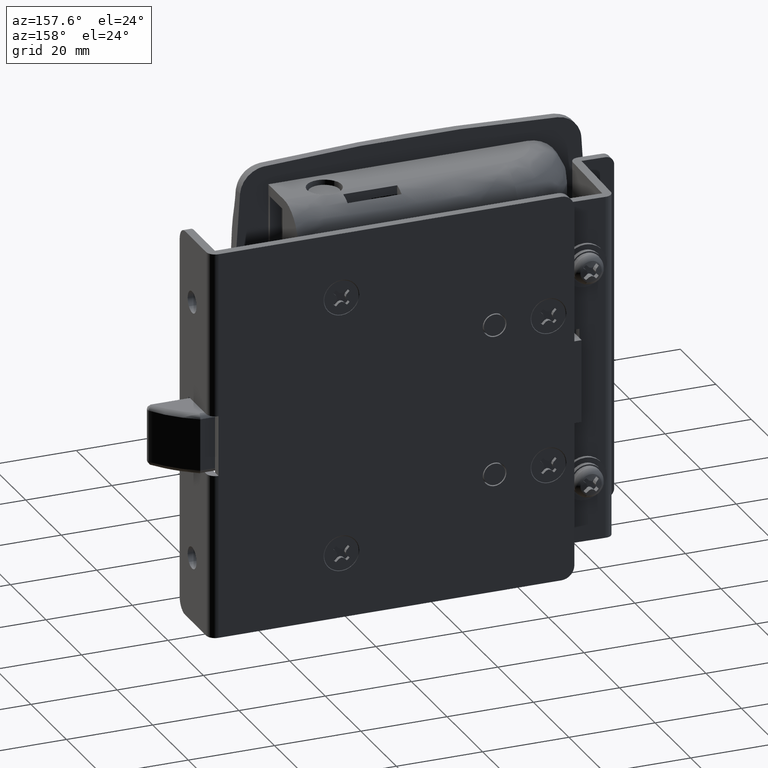
[diagram: clean part render]
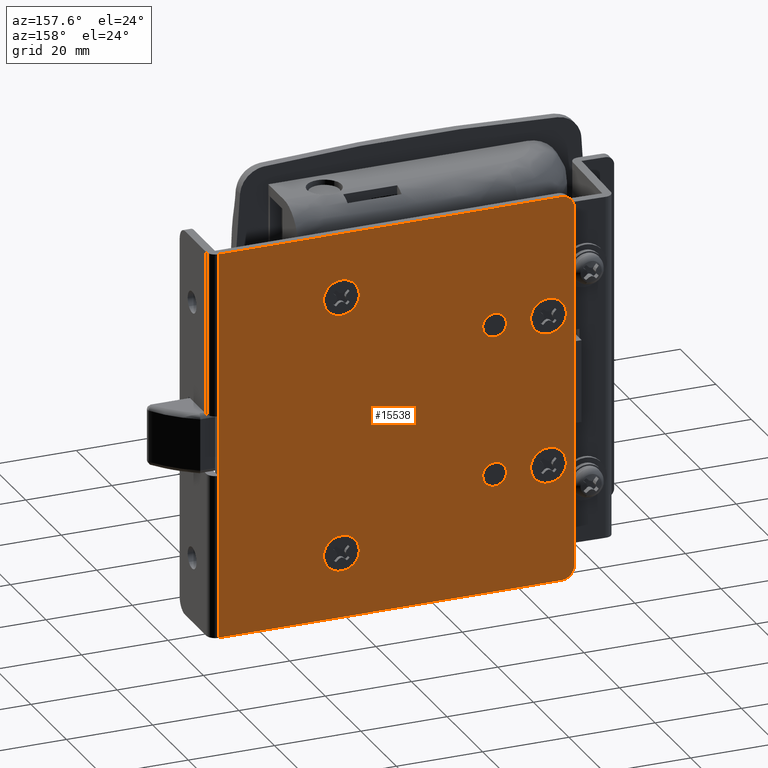
[diagram: same view with one face highlighted and labeled with its STEP entity id]
A machine part, auxiliary view. The second image highlights one B-rep face of the part: STEP entity #15538.
In plain terms, the highlighted face is a freeform B-spline surface patch.
Its self-contained STEP definition (entity closure, byte-faithful):
#8909=CARTESIAN_POINT('',(-5.472486764820257,-4.510281E-017,-19.357573758548568));
#8910=VERTEX_POINT('',#8909);
#8916=CARTESIAN_POINT('',(-7.499999999999770,0.0,-20.249700000000001));
#8917=VERTEX_POINT('',#8916);
#8918=CARTESIAN_POINT('',(-5.472486764820257,-4.510281E-017,-19.357573758548568));
#8919=CARTESIAN_POINT('',(-5.632884889595477,-4.153469E-017,-19.532712675213219));
#8920=CARTESIAN_POINT('',(-5.962786812446860,-3.419590E-017,-19.810153431054999));
#8921=CARTESIAN_POINT('',(-6.645240300444558,-1.901446E-017,-20.153727850207289));
#8922=CARTESIAN_POINT('',(-7.167472944522998,-7.397192E-018,-20.249994404481001));
#8923=CARTESIAN_POINT('',(-7.499999999999770,0.0,-20.249700000000001));
#8924=B_SPLINE_CURVE_WITH_KNOTS('',3,(#8918,#8919,#8920,#8921,#8922,#8923),.UNSPECIFIED.,.F.,.U.,(4,1,1,4),(0.000000021757306,0.712471145882146,1.282443304209059,2.279900310579054),.UNSPECIFIED.);
#8925=EDGE_CURVE('',#8910,#8917,#8924,.T.);
#8927=CARTESIAN_POINT('',(-10.249999999997520,0.0,-17.499696480036189));
#8928=VERTEX_POINT('',#8927);
#8929=CARTESIAN_POINT('',(-7.499999999999770,0.0,-20.249700000000001));
#8930=CARTESIAN_POINT('',(-7.837533458423358,0.0,-20.250032966791679));
#8931=CARTESIAN_POINT('',(-8.354739198675501,0.0,-20.153149346765431));
#8932=CARTESIAN_POINT('',(-9.061541571091166,0.0,-19.797423171544150));
#8933=CARTESIAN_POINT('',(-9.578205878396686,0.0,-19.351810811415952));
#8934=CARTESIAN_POINT('',(-9.955935345113534,0.0,-18.786296907043699));
#8935=CARTESIAN_POINT('',(-10.191889706605750,0.0,-18.174612791913610));
#8936=CARTESIAN_POINT('',(-10.250083225690529,0.0,-17.747185682857449));
#8937=CARTESIAN_POINT('',(-10.249999999997520,0.0,-17.499696480036189));
#8938=B_SPLINE_CURVE_WITH_KNOTS('',3,(#8929,#8930,#8931,#8932,#8933,#8934,#8935,#8936,#8937),.UNSPECIFIED.,.F.,.U.,(4,1,1,1,1,1,4),(0.000000108881161,1.012449949449890,1.552443345191438,2.362362228069649,3.037353272983501,3.577336101615362,4.319800280881282),.UNSPECIFIED.);
#8939=EDGE_CURVE('',#8917,#8928,#8938,.T.);
#8941=CARTESIAN_POINT('',(-7.499999999999770,0.0,-14.749700000000001));
#8942=VERTEX_POINT('',#8941);
#8943=CARTESIAN_POINT('',(-10.249999999997520,0.0,-17.499696480036189));
#8944=CARTESIAN_POINT('',(-10.250040727075790,0.0,-17.252223121614630));
#8945=CARTESIAN_POINT('',(-10.173733166742840,0.0,-16.689709287101280));
#8946=CARTESIAN_POINT('',(-9.812557236472379,0.0,-15.926064476880111));
#8947=CARTESIAN_POINT('',(-9.279262947990672,0.0,-15.366071417797601));
#8948=CARTESIAN_POINT('',(-8.782591651496171,0.0,-15.051718151289061));
#8949=CARTESIAN_POINT('',(-8.219856239878656,0.0,-14.818577055773760));
#8950=CARTESIAN_POINT('',(-7.792506192846886,0.0,-14.749514343621270));
#8951=CARTESIAN_POINT('',(-7.499999999999770,0.0,-14.749700000000001));
#8952=B_SPLINE_CURVE_WITH_KNOTS('',3,(#8943,#8944,#8945,#8946,#8947,#8948,#8949,#8950,#8951),.UNSPECIFIED.,.F.,.U.,(4,1,1,1,1,1,4),(0.000000113703493,0.742463611042443,1.687447851981347,2.497349232957594,3.037350483973803,3.442344041872089,4.319796312962690),.UNSPECIFIED.);
#8953=EDGE_CURVE('',#8928,#8942,#8952,.T.);
#8955=CARTESIAN_POINT('',(-5.529210520973344,-4.259142E-017,-15.581762568487891));
#8956=VERTEX_POINT('',#8955);
#8957=CARTESIAN_POINT('',(-7.499999999999770,0.0,-14.749700000000001));
#8958=CARTESIAN_POINT('',(-7.156633111447754,-7.420622E-018,-14.749379268539469));
#8959=CARTESIAN_POINT('',(-6.607572576598158,-1.928656E-017,-14.853957320323650));
#8960=CARTESIAN_POINT('',(-5.956215721042868,-3.336326E-017,-15.198908142540590));
#8961=CARTESIAN_POINT('',(-5.656896751348976,-3.983195E-017,-15.450527218027320));
#8962=CARTESIAN_POINT('',(-5.529210520973344,-4.259142E-017,-15.581762568487891));
#8963=B_SPLINE_CURVE_WITH_KNOTS('',3,(#8957,#8958,#8959,#8960,#8961,#8962),.UNSPECIFIED.,.F.,.U.,(4,1,1,4),(0.000000032604026,1.029977415970075,1.647956154791026,2.197274862095274),.UNSPECIFIED.);
#8964=EDGE_CURVE('',#8942,#8956,#8963,.T.);
#9000=CARTESIAN_POINT('',(-4.750000000002022,0.0,-17.499703519963809));
#9001=VERTEX_POINT('',#9000);
#9002=CARTESIAN_POINT('',(-5.529210520973344,-4.259142E-017,-15.581762568487891));
#9003=CARTESIAN_POINT('',(-5.282204724196722,-3.696621E-017,-15.835072537323439));
#9004=CARTESIAN_POINT('',(-4.888518423320861,-2.356166E-017,-16.438695066708888));
#9005=CARTESIAN_POINT('',(-4.749669090226534,-7.856340E-018,-17.145923625691641));
#9006=CARTESIAN_POINT('',(-4.750000000002022,0.0,-17.499703519963809));
#9007=B_SPLINE_CURVE_WITH_KNOTS('',3,(#9002,#9003,#9004,#9005,#9006),.UNSPECIFIED.,.F.,.U.,(4,1,4),(0.000000027606866,1.061263341975654,2.122526360433358),.UNSPECIFIED.);
#9008=EDGE_CURVE('',#8956,#9001,#9007,.T.);
#9010=CARTESIAN_POINT('',(-4.750000000002022,0.0,-17.499703519963809));
#9011=CARTESIAN_POINT('',(-4.749771736594540,-7.738373E-018,-17.818461916018990));
#9012=CARTESIAN_POINT('',(-4.869589416968504,-2.424106E-017,-18.498239200565799));
#9013=CARTESIAN_POINT('',(-5.228137372013847,-3.864257E-017,-19.091464445725681));
#9014=CARTESIAN_POINT('',(-5.472486764820257,-4.510281E-017,-19.357573758548568));
#9015=B_SPLINE_CURVE_WITH_KNOTS('',3,(#9010,#9011,#9012,#9013,#9014),.UNSPECIFIED.,.F.,.U.,(4,1,4),(0.000000036259401,0.956209974425790,2.039896156770959),.UNSPECIFIED.);
#9016=EDGE_CURVE('',#9001,#8910,#9015,.T.);
#9110=CARTESIAN_POINT('',(-5.472486764820258,-4.510281E-017,15.642126241451431));
#9111=VERTEX_POINT('',#9110);
#9117=CARTESIAN_POINT('',(-7.499999999999770,0.0,14.750000000000000));
#9118=VERTEX_POINT('',#9117);
#9119=CARTESIAN_POINT('',(-5.472486764820258,-4.510281E-017,15.642126241451431));
#9120=CARTESIAN_POINT('',(-5.664913361187820,-4.082221E-017,15.431890712749260));
#9121=CARTESIAN_POINT('',(-6.040799346347707,-3.246048E-017,15.132258416044820));
#9122=CARTESIAN_POINT('',(-6.740133984823192,-1.690351E-017,14.824531496367690));
#9123=CARTESIAN_POINT('',(-7.215002378404384,-6.339882E-018,14.749840705330939));
#9124=CARTESIAN_POINT('',(-7.499999999999770,0.0,14.750000000000000));
#9125=B_SPLINE_CURVE_WITH_KNOTS('',3,(#9119,#9120,#9121,#9122,#9123,#9124),.UNSPECIFIED.,.F.,.U.,(4,1,1,4),(0.000000021757220,0.854965910976933,1.424937224153678,2.279900310579051),.UNSPECIFIED.);
#9126=EDGE_CURVE('',#9111,#9118,#9125,.T.);
#9128=CARTESIAN_POINT('',(-10.249999999997520,0.0,17.500003519963808));
#9129=VERTEX_POINT('',#9128);
#9130=CARTESIAN_POINT('',(-7.499999999999770,0.0,14.750000000000000));
#9131=CARTESIAN_POINT('',(-7.679978807611808,0.0,14.749986216365420));
#9132=CARTESIAN_POINT('',(-8.107461537274855,0.0,14.792065636952550));
#9133=CARTESIAN_POINT('',(-8.687132614258569,0.0,14.991443977934040));
#9134=CARTESIAN_POINT('',(-9.202794379102853,0.0,15.318086553338670));
#9135=CARTESIAN_POINT('',(-9.628515786934266,0.0,15.723359758241260));
#9136=CARTESIAN_POINT('',(-9.955956104011642,0.0,16.213386406961181));
#9137=CARTESIAN_POINT('',(-10.191884691962811,0.0,16.825088295334830));
#9138=CARTESIAN_POINT('',(-10.250084523846921,0.0,17.252514855042680));
#9139=CARTESIAN_POINT('',(-10.249999999997520,0.0,17.500003519963808));
#9140=B_SPLINE_CURVE_WITH_KNOTS('',3,(#9130,#9131,#9132,#9133,#9134,#9135,#9136,#9137,#9138,#9139),.UNSPECIFIED.,.F.,.U.,(4,1,1,1,1,1,1,4),(0.000000108879937,0.539953404360052,1.282447116584088,1.822448863168576,2.362362228069400,3.037353272983560,3.577336101615435,4.319800280881267),.UNSPECIFIED.);
#9141=EDGE_CURVE('',#9118,#9129,#9140,.T.);
#9143=CARTESIAN_POINT('',(-7.499999999999770,0.0,20.250000000000000));
#9144=VERTEX_POINT('',#9143);
#9145=CARTESIAN_POINT('',(-10.249999999997520,0.0,17.500003519963808));
#9146=CARTESIAN_POINT('',(-10.250315160724130,0.0,17.837544369680181));
#9147=CARTESIAN_POINT('',(-10.161877056846549,0.0,18.309743031052520));
#9148=CARTESIAN_POINT('',(-9.843606316159203,0.0,18.982800531881320));
#9149=CARTESIAN_POINT('',(-9.479815647787293,0.0,19.448915616285980));
#9150=CARTESIAN_POINT('',(-8.909470512865470,0.0,19.894045769532720));
#9151=CARTESIAN_POINT('',(-8.264942001347224,0.0,20.179707164799581));
#9152=CARTESIAN_POINT('',(-7.747482412669842,0.0,20.250073940247990));
#9153=CARTESIAN_POINT('',(-7.499999999999770,0.0,20.250000000000000));
#9154=B_SPLINE_CURVE_WITH_KNOTS('',3,(#9145,#9146,#9147,#9148,#9149,#9150,#9151,#9152,#9153),.UNSPECIFIED.,.F.,.U.,(4,1,1,1,1,1,4),(0.000000113708223,1.012449023532240,1.417434714962523,2.227382627400161,2.767354502254437,3.577332814012101,4.319796312962660),.UNSPECIFIED.);
#9155=EDGE_CURVE('',#9129,#9144,#9154,.T.);
#9157=CARTESIAN_POINT('',(-5.529210520973344,-4.259142E-017,19.417937431512112));
#9158=VERTEX_POINT('',#9157);
#9159=CARTESIAN_POINT('',(-7.499999999999770,0.0,20.250000000000000));
#9160=CARTESIAN_POINT('',(-7.248217718852021,-5.441355E-018,20.250100540558780));
#9161=CARTESIAN_POINT('',(-6.859199120293742,-1.384857E-017,20.196152627401780));
#9162=CARTESIAN_POINT('',(-6.169100200560806,-2.876254E-017,19.944672218065762));
#9163=CARTESIAN_POINT('',(-5.768447595047864,-3.742119E-017,19.664264093131209));
#9164=CARTESIAN_POINT('',(-5.529210520973344,-4.259142E-017,19.417937431512112));
#9165=B_SPLINE_CURVE_WITH_KNOTS('',3,(#9159,#9160,#9161,#9162,#9163,#9164),.UNSPECIFIED.,.F.,.U.,(4,1,1,4),(0.000000032604054,0.755321418490018,1.167297478636635,2.197274862095274),.UNSPECIFIED.);
#9166=EDGE_CURVE('',#9144,#9158,#9165,.T.);
#9201=CARTESIAN_POINT('',(-4.750000000002022,0.0,17.499996480036181));
#9202=VERTEX_POINT('',#9201);
#9203=CARTESIAN_POINT('',(-5.529210520973344,-4.259142E-017,19.417937431512112));
#9204=CARTESIAN_POINT('',(-5.282204939771527,-3.696622E-017,19.164627991623739));
#9205=CARTESIAN_POINT('',(-4.888518263338739,-2.356166E-017,18.561004665695361));
#9206=CARTESIAN_POINT('',(-4.749669179161277,-7.856343E-018,17.853776471875712));
#9207=CARTESIAN_POINT('',(-4.750000000002022,0.0,17.499996480036181));
#9208=B_SPLINE_CURVE_WITH_KNOTS('',3,(#9203,#9204,#9205,#9206,#9207),.UNSPECIFIED.,.F.,.U.,(4,1,4),(0.000000027606992,1.061263341975797,2.122526360433365),.UNSPECIFIED.);
#9209=EDGE_CURVE('',#9158,#9202,#9208,.T.);
#9211=CARTESIAN_POINT('',(-4.750000000002022,0.0,17.499996480036181));
#9212=CARTESIAN_POINT('',(-4.749627945813355,-8.770578E-018,17.138719583267221));
#9213=CARTESIAN_POINT('',(-4.886055751622750,-2.526899E-017,16.459118705862160));
#9214=CARTESIAN_POINT('',(-5.256968667768399,-3.940125E-017,15.876984265415880));
#9215=CARTESIAN_POINT('',(-5.472486764820258,-4.510281E-017,15.642126241451431));
#9216=B_SPLINE_CURVE_WITH_KNOTS('',3,(#9211,#9212,#9213,#9214,#9215),.UNSPECIFIED.,.F.,.U.,(4,1,4),(0.000000036259554,1.083686218635594,2.039896156770959),.UNSPECIFIED.);
#9217=EDGE_CURVE('',#9202,#9111,#9216,.T.);
#9473=CARTESIAN_POINT('',(-16.837793538553139,0.000000355834500,-20.173990557708340));
#9474=VERTEX_POINT('',#9473);
#9480=CARTESIAN_POINT('',(-20.0,0.0,-21.641121356237448));
#9481=VERTEX_POINT('',#9480);
#9482=CARTESIAN_POINT('',(-16.837793538553139,0.000000355834500,-20.173990557708340));
#9483=CARTESIAN_POINT('',(-17.019282028743369,0.000000335412093,-20.388653686420621));
#9484=CARTESIAN_POINT('',(-17.399094455386031,0.000000292672833,-20.754633571313551));
#9485=CARTESIAN_POINT('',(-18.092863074875190,0.000000214604935,-21.206188795043701));
#9486=CARTESIAN_POINT('',(-18.950619726497390,0.000000118083910,-21.548894235073369));
#9487=CARTESIAN_POINT('',(-19.625187459781849,0.000000042176637,-21.641252206597379));
#9488=CARTESIAN_POINT('',(-20.0,0.0,-21.641121356237448));
#9489=B_SPLINE_CURVE_WITH_KNOTS('',3,(#9482,#9483,#9484,#9485,#9486,#9487,#9488),.UNSPECIFIED.,.F.,.U.,(4,1,1,1,4),(0.000000048048810,0.843303746268839,1.574189396033678,2.473688201682936,3.598101684152726),.UNSPECIFIED.);
#9490=EDGE_CURVE('',#9474,#9481,#9489,.T.);
#9492=CARTESIAN_POINT('',(-24.141421356236439,0.0,-17.499697113255021));
#9493=VERTEX_POINT('',#9492);
#9494=CARTESIAN_POINT('',(-20.0,0.0,-21.641121356237448));
#9495=CARTESIAN_POINT('',(-20.338818897867380,0.0,-21.641180896046130));
#9496=CARTESIAN_POINT('',(-21.033384539686601,0.0,-21.555457584951650));
#9497=CARTESIAN_POINT('',(-21.907844176365369,0.0,-21.211965440258091));
#9498=CARTESIAN_POINT('',(-22.657141522482512,0.0,-20.711228834326260));
#9499=CARTESIAN_POINT('',(-23.175383321875358,0.0,-20.193003272591859));
#9500=CARTESIAN_POINT('',(-23.601749018706030,0.0,-19.579524699710699));
#9501=CARTESIAN_POINT('',(-24.007256838936581,0.0,-18.736183102126979));
#9502=CARTESIAN_POINT('',(-24.141740566113921,0.0,-17.991033470456731));
#9503=CARTESIAN_POINT('',(-24.141421356236439,0.0,-17.499697113255021));
#9504=B_SPLINE_CURVE_WITH_KNOTS('',3,(#9494,#9495,#9496,#9497,#9498,#9499,#9500,#9501,#9502,#9503),.UNSPECIFIED.,.F.,.U.,(4,1,1,1,1,1,1,4),(0.000000145045624,1.016457470454869,2.083757485133898,2.795297749605207,3.710078010044306,4.269134189246767,5.031502556323803,6.505371899308881),.UNSPECIFIED.);
#9505=EDGE_CURVE('',#9481,#9493,#9504,.T.);
#9507=CARTESIAN_POINT('',(-20.0,0.0,-13.358278643762560));
#9508=VERTEX_POINT('',#9507);
#9509=CARTESIAN_POINT('',(-24.141421356236439,0.0,-17.499697113255021));
#9510=CARTESIAN_POINT('',(-24.141432076636988,0.0,-17.245592907666481));
#9511=CARTESIAN_POINT('',(-24.085173262425212,0.0,-16.635706736317822));
#9512=CARTESIAN_POINT('',(-23.769806182773689,0.0,-15.660495296941839));
#9513=CARTESIAN_POINT('',(-23.151317931206901,0.0,-14.734933997929151));
#9514=CARTESIAN_POINT('',(-22.414514930115679,0.0,-14.099571509454449));
#9515=CARTESIAN_POINT('',(-21.642926935434922,0.0,-13.668681796085920));
#9516=CARTESIAN_POINT('',(-20.863990987479180,0.0,-13.416649644111370));
#9517=CARTESIAN_POINT('',(-20.271051386158881,0.0,-13.358259837486800));
#9518=CARTESIAN_POINT('',(-20.0,0.0,-13.358278643762560));
#9519=B_SPLINE_CURVE_WITH_KNOTS('',3,(#9509,#9510,#9511,#9512,#9513,#9514,#9515,#9516,#9517,#9518),.UNSPECIFIED.,.F.,.U.,(4,1,1,1,1,1,1,4),(0.000000146058066,0.762327402016850,1.829637880374027,3.049426831355864,4.065847601133410,4.726553006081298,5.692205442091066,6.505368645254075),.UNSPECIFIED.);
#9520=EDGE_CURVE('',#9493,#9508,#9519,.T.);
#9522=CARTESIAN_POINT('',(-17.149234403700341,-0.000000360348654,-14.495619872786129));
#9523=VERTEX_POINT('',#9522);
#9524=CARTESIAN_POINT('',(-20.0,0.0,-13.358278643762560));
#9525=CARTESIAN_POINT('',(-19.574201506841270,-0.000000053822704,-13.358087297768639));
#9526=CARTESIAN_POINT('',(-18.804611240171958,-0.000000151102122,-13.478019735644580));
#9527=CARTESIAN_POINT('',(-17.845897195611531,-0.000000272287573,-13.921270764937860));
#9528=CARTESIAN_POINT('',(-17.351156659781179,-0.000000334824839,-14.303967487916189));
#9529=CARTESIAN_POINT('',(-17.149234403700341,-0.000000360348654,-14.495619872786129));
#9530=B_SPLINE_CURVE_WITH_KNOTS('',3,(#9524,#9525,#9526,#9527,#9528,#9529),.UNSPECIFIED.,.F.,.U.,(4,1,1,4),(0.000000035416983,1.277365254696489,2.309066095202606,3.144260594604561),.UNSPECIFIED.);
#9531=EDGE_CURVE('',#9508,#9523,#9530,.T.);
#9613=CARTESIAN_POINT('',(-15.858578643763559,0.0,-17.499702886745020));
#9614=VERTEX_POINT('',#9613);
#9615=CARTESIAN_POINT('',(-17.149234403700341,-0.000000360348654,-14.495619872786129));
#9616=CARTESIAN_POINT('',(-16.806129739414811,-0.000000321344378,-14.820783107540681));
#9617=CARTESIAN_POINT('',(-16.371443003729709,-0.000000251263620,-15.405018564463820));
#9618=CARTESIAN_POINT('',(-15.953822208210660,-0.000000125980228,-16.449456221931410));
#9619=CARTESIAN_POINT('',(-15.858413077044631,-0.000000048299577,-17.097048698312371));
#9620=CARTESIAN_POINT('',(-15.858578643763559,0.0,-17.499702886745020));
#9621=B_SPLINE_CURVE_WITH_KNOTS('',3,(#9615,#9616,#9617,#9618,#9619,#9620),.UNSPECIFIED.,.F.,.U.,(4,1,1,4),(0.000000038801880,1.417969218241056,2.153202852752659,3.361111851408633),.UNSPECIFIED.);
#9622=EDGE_CURVE('',#9523,#9614,#9621,.T.);
#9624=CARTESIAN_POINT('',(-15.858578643763559,0.0,-17.499702886745020));
#9625=CARTESIAN_POINT('',(-15.858269028053069,0.000000060449534,-17.954013770700211));
#9626=CARTESIAN_POINT('',(-15.964306078400661,0.000000145041673,-18.589769283730149));
#9627=CARTESIAN_POINT('',(-16.337967938405590,0.000000264321445,-19.486220902747529));
#9628=CARTESIAN_POINT('',(-16.622617796357559,0.000000321996034,-19.919676370915241));
#9629=CARTESIAN_POINT('',(-16.837793538553139,0.000000355834500,-20.173990557708340));
#9630=B_SPLINE_CURVE_WITH_KNOTS('',3,(#9624,#9625,#9626,#9627,#9628,#9629),.UNSPECIFIED.,.F.,.U.,(4,1,1,4),(0.000000014005533,1.362802655373462,1.907923046484239,2.907311632009534),.UNSPECIFIED.);
#9631=EDGE_CURVE('',#9614,#9474,#9630,.T.);
#9876=CARTESIAN_POINT('',(-16.837793538553129,0.000000355834501,14.825709442291661));
#9877=VERTEX_POINT('',#9876);
#9883=CARTESIAN_POINT('',(-20.0,0.0,13.358578643762559));
#9884=VERTEX_POINT('',#9883);
#9885=CARTESIAN_POINT('',(-16.837793538553129,0.000000355834501,14.825709442291661));
#9886=CARTESIAN_POINT('',(-17.067651395366440,0.000000329969221,14.553768207587011));
#9887=CARTESIAN_POINT('',(-17.486437203282399,0.000000282844392,14.171716509818660));
#9888=CARTESIAN_POINT('',(-18.245727852053850,0.000000197403478,13.720475462853059));
#9889=CARTESIAN_POINT('',(-19.044277036257341,0.000000107544908,13.432428238686571));
#9890=CARTESIAN_POINT('',(-19.681417960017360,0.000000035849171,13.358525311102101));
#9891=CARTESIAN_POINT('',(-20.0,0.0,13.358578643762559));
#9892=B_SPLINE_CURVE_WITH_KNOTS('',3,(#9885,#9886,#9887,#9888,#9889,#9890,#9891),.UNSPECIFIED.,.F.,.U.,(4,1,1,1,4),(0.000000048046300,1.068188492142122,1.686627542375718,2.642354564319901,3.598101684152752),.UNSPECIFIED.);
#9893=EDGE_CURVE('',#9877,#9884,#9892,.T.);
#9895=CARTESIAN_POINT('',(-24.141421356236439,0.0,17.500002886744969));
#9896=VERTEX_POINT('',#9895);
#9897=CARTESIAN_POINT('',(-20.0,0.0,13.358578643762559));
#9898=CARTESIAN_POINT('',(-20.406598265122032,0.0,13.358412451313480));
#9899=CARTESIAN_POINT('',(-21.101075143396191,0.0,13.461710023836490));
#9900=CARTESIAN_POINT('',(-21.964375477869829,0.0,13.825577385017120));
#9901=CARTESIAN_POINT('',(-22.657141706842101,0.0,14.288470570612761));
#9902=CARTESIAN_POINT('',(-23.175384073968310,0.0,14.806693130887790));
#9903=CARTESIAN_POINT('',(-23.601750563232599,0.0,15.420174910712310));
#9904=CARTESIAN_POINT('',(-24.007255206301739,0.0,16.263517624475590));
#9905=CARTESIAN_POINT('',(-24.141741607279631,0.0,17.008666301963419));
#9906=CARTESIAN_POINT('',(-24.141421356236439,0.0,17.500002886744969));
#9907=B_SPLINE_CURVE_WITH_KNOTS('',3,(#9897,#9898,#9899,#9900,#9901,#9902,#9903,#9904,#9905,#9906),.UNSPECIFIED.,.F.,.U.,(4,1,1,1,1,1,1,4),(0.000000145049803,1.219746704959880,2.083757485134963,2.795297749605433,3.710078010044085,4.269134189246302,5.031502556323246,6.505371899308886),.UNSPECIFIED.);
#9908=EDGE_CURVE('',#9884,#9896,#9907,.T.);
#9910=CARTESIAN_POINT('',(-20.0,0.0,21.641421356237451));
#9911=VERTEX_POINT('',#9910);
#9912=CARTESIAN_POINT('',(-24.141421356236439,0.0,17.500002886744969));
#9913=CARTESIAN_POINT('',(-24.141734620441110,0.0,17.957453405408970));
#9914=CARTESIAN_POINT('',(-24.016601892428469,0.0,18.702652658433760));
#9915=CARTESIAN_POINT('',(-23.621180721235341,0.0,19.551964651868950));
#9916=CARTESIAN_POINT('',(-23.204436402592279,0.0,20.151453088845312));
#9917=CARTESIAN_POINT('',(-22.673186172805050,0.0,20.702702713461552));
#9918=CARTESIAN_POINT('',(-21.924675860864522,0.0,21.209583762923071));
#9919=CARTESIAN_POINT('',(-20.999473234576548,0.0,21.559887509631562));
#9920=CARTESIAN_POINT('',(-20.338822628145351,0.0,21.641502953517339));
#9921=CARTESIAN_POINT('',(-20.0,0.0,21.641421356237451));
#9922=B_SPLINE_CURVE_WITH_KNOTS('',3,(#9912,#9913,#9914,#9915,#9916,#9917,#9918,#9919,#9920,#9921),.UNSPECIFIED.,.F.,.U.,(4,1,1,1,1,1,1,4),(0.000000146063719,1.372225464168773,2.236238686911773,2.795296350290626,3.557585327827429,4.523260025252066,5.488920992163565,6.505368645254010),.UNSPECIFIED.);
#9923=EDGE_CURVE('',#9896,#9911,#9922,.T.);
#9925=CARTESIAN_POINT('',(-17.149234403700341,-0.000000360348655,20.504080127213861));
#9926=VERTEX_POINT('',#9925);
#9927=CARTESIAN_POINT('',(-20.0,0.0,21.641421356237451));
#9928=CARTESIAN_POINT('',(-19.721605376365641,-0.000000035190241,21.641447533065691));
#9929=CARTESIAN_POINT('',(-19.099306525443492,-0.000000113851410,21.578480671608620));
#9930=CARTESIAN_POINT('',(-18.098751943772790,-0.000000240325680,21.240094967320289));
#9931=CARTESIAN_POINT('',(-17.457974849700211,-0.000000321322575,20.797304780615729));
#9932=CARTESIAN_POINT('',(-17.149234403700341,-0.000000360348655,20.504080127213861));
#9933=B_SPLINE_CURVE_WITH_KNOTS('',3,(#9927,#9928,#9929,#9930,#9931,#9932),.UNSPECIFIED.,.F.,.U.,(4,1,1,4),(0.000000035412072,0.835194534818121,1.866895375448812,3.144260594604581),.UNSPECIFIED.);
#9934=EDGE_CURVE('',#9911,#9926,#9933,.T.);
#10017=CARTESIAN_POINT('',(-15.858578643763559,0.0,17.499997113254970));
#10018=VERTEX_POINT('',#10017);
#10019=CARTESIAN_POINT('',(-17.149234403700341,-0.000000360348655,20.504080127213861));
#10020=CARTESIAN_POINT('',(-16.806129679608141,-0.000000321344119,20.178914730446579));
#10021=CARTESIAN_POINT('',(-16.392645748755388,-0.000000254682635,19.623184397511540));
#10022=CARTESIAN_POINT('',(-15.962274900633609,-0.000000130174476,18.585209547574941));
#10023=CARTESIAN_POINT('',(-15.858307547176111,-0.000000052501486,17.937680930419980));
#10024=CARTESIAN_POINT('',(-15.858578643763559,0.0,17.499997113254970));
#10025=B_SPLINE_CURVE_WITH_KNOTS('',3,(#10019,#10020,#10021,#10022,#10023,#10024),.UNSPECIFIED.,.F.,.U.,(4,1,1,4),(0.000000038797492,1.417969218239773,2.048170258398836,3.361111851408641),.UNSPECIFIED.);
#10026=EDGE_CURVE('',#9926,#10018,#10025,.T.);
#10028=CARTESIAN_POINT('',(-15.858578643763559,0.0,17.499997113254970));
#10029=CARTESIAN_POINT('',(-15.858271835250481,0.000000060449295,17.045688034347972));
#10030=CARTESIAN_POINT('',(-15.964302051601390,0.000000145041778,16.409929931228881));
#10031=CARTESIAN_POINT('',(-16.337971791687991,0.000000264321342,15.513479884086481));
#10032=CARTESIAN_POINT('',(-16.622614499268050,0.000000321996014,15.080023789418011));
#10033=CARTESIAN_POINT('',(-16.837793538553129,0.000000355834501,14.825709442291661));
#10034=B_SPLINE_CURVE_WITH_KNOTS('',3,(#10028,#10029,#10030,#10031,#10032,#10033),.UNSPECIFIED.,.F.,.U.,(4,1,1,4),(0.000000014004397,1.362802655372849,1.907923046483952,2.907311632009525),.UNSPECIFIED.);
#10035=EDGE_CURVE('',#10018,#9877,#10034,.T.);
#10284=CARTESIAN_POINT('',(31.162206461446861,0.000000355834503,-32.673990557708343));
#10285=VERTEX_POINT('',#10284);
#10291=CARTESIAN_POINT('',(28.0,0.0,-34.141121356237441));
#10292=VERTEX_POINT('',#10291);
#10293=CARTESIAN_POINT('',(31.162206461446861,0.000000355834503,-32.673990557708343));
#10294=CARTESIAN_POINT('',(30.932353718841000,0.000000329969798,-32.945933313216983));
#10295=CARTESIAN_POINT('',(30.415870172394651,0.000000271851307,-33.417159012974693));
#10296=CARTESIAN_POINT('',(29.349012906787710,0.000000151800758,-33.984555239632918));
#10297=CARTESIAN_POINT('',(28.506050252297040,0.000000056944460,-34.141577072583260));
#10298=CARTESIAN_POINT('',(28.0,0.0,-34.141121356237441));
#10299=B_SPLINE_CURVE_WITH_KNOTS('',3,(#10293,#10294,#10295,#10296,#10297,#10298),.UNSPECIFIED.,.F.,.U.,(4,1,1,4),(0.000000048045472,1.068188492141777,2.080144078980469,3.598101684152785),.UNSPECIFIED.);
#10300=EDGE_CURVE('',#10285,#10292,#10299,.T.);
#10302=CARTESIAN_POINT('',(23.858578643763568,0.0,-29.999697113255031));
#10303=VERTEX_POINT('',#10302);
#10304=CARTESIAN_POINT('',(28.0,0.0,-34.141121356237441));
#10305=CARTESIAN_POINT('',(27.593393236629339,0.0,-34.141299047719841));
#10306=CARTESIAN_POINT('',(26.966702633327522,0.0,-34.048030474340969));
#10307=CARTESIAN_POINT('',(26.096677732005372,0.0,-33.706253593605503));
#10308=CARTESIAN_POINT('',(25.333410034495110,0.0,-33.223049071310548));
#10309=CARTESIAN_POINT('',(24.578903960717550,0.0,-32.430661025050377));
#10310=CARTESIAN_POINT('',(24.003152553074880,0.0,-31.320959319277041));
#10311=CARTESIAN_POINT('',(23.858307513443570,0.0,-30.457135274039320));
#10312=CARTESIAN_POINT('',(23.858578643763568,0.0,-29.999697113255031));
#10313=B_SPLINE_CURVE_WITH_KNOTS('',3,(#10304,#10305,#10306,#10307,#10308,#10309,#10310,#10311,#10312),.UNSPECIFIED.,.F.,.U.,(4,1,1,1,1,1,4),(0.000000145053975,1.219746704964310,1.880466409299456,2.795297749610167,3.913359982932588,5.133150183962302,6.505371899308786),.UNSPECIFIED.);
#10314=EDGE_CURVE('',#10292,#10303,#10313,.T.);
#10316=CARTESIAN_POINT('',(28.0,0.0,-25.858278643762560));
#10317=VERTEX_POINT('',#10316);
#10318=CARTESIAN_POINT('',(23.858578643763568,0.0,-29.999697113255031));
#10319=CARTESIAN_POINT('',(23.858277497990589,0.0,-29.542254909467200));
#10320=CARTESIAN_POINT('',(23.994731183216590,0.0,-28.729280035774611));
#10321=CARTESIAN_POINT('',(24.487848029795678,0.0,-27.734465405722990));
#10322=CARTESIAN_POINT('',(25.010482822902649,0.0,-27.105728808290142));
#10323=CARTESIAN_POINT('',(25.665858341921730,0.0,-26.540201270164889));
#10324=CARTESIAN_POINT('',(26.611013920745162,0.0,-26.019959800709628));
#10325=CARTESIAN_POINT('',(27.508681316011110,0.0,-25.857903105146750));
#10326=CARTESIAN_POINT('',(28.0,0.0,-25.858278643762560));
#10327=B_SPLINE_CURVE_WITH_KNOTS('',3,(#10318,#10319,#10320,#10321,#10322,#10323,#10324,#10325,#10326),.UNSPECIFIED.,.F.,.U.,(4,1,1,1,1,1,4),(0.000000146070915,1.372225464175981,2.439526638563326,3.303463211948839,3.811714255530600,5.031500038412643,6.505368645253995),.UNSPECIFIED.);
#10328=EDGE_CURVE('',#10303,#10317,#10327,.T.);
#10330=CARTESIAN_POINT('',(30.850765596299659,-0.000000360348656,-26.995619872786140));
#10331=VERTEX_POINT('',#10330);
#10332=CARTESIAN_POINT('',(28.0,0.0,-25.858278643762560));
#10333=CARTESIAN_POINT('',(28.278394663150049,-0.000000035190246,-25.858251910234099));
#10334=CARTESIAN_POINT('',(28.900693414026058,-0.000000113851403,-25.921220114207859));
#10335=CARTESIAN_POINT('',(29.901248198924840,-0.000000240325699,-26.259604471576189));
#10336=CARTESIAN_POINT('',(30.542024855044652,-0.000000321322540,-26.702395335771811));
#10337=CARTESIAN_POINT('',(30.850765596299659,-0.000000360348656,-26.995619872786140));
#10338=B_SPLINE_CURVE_WITH_KNOTS('',3,(#10332,#10333,#10334,#10335,#10336,#10337),.UNSPECIFIED.,.F.,.U.,(4,1,1,4),(0.000000035414318,0.835194534819581,1.866895375449470,3.144260594604578),.UNSPECIFIED.);
#10339=EDGE_CURVE('',#10317,#10331,#10338,.T.);
#10420=CARTESIAN_POINT('',(32.141421356236442,0.0,-29.999702886745030));
#10421=VERTEX_POINT('',#10420);
#10422=CARTESIAN_POINT('',(30.850765596299659,-0.000000360348656,-26.995619872786140));
#10423=CARTESIAN_POINT('',(31.130233526865890,-0.000000328559706,-27.260631787956090));
#10424=CARTESIAN_POINT('',(31.592295319987869,-0.000000258857560,-27.841710922087440));
#10425=CARTESIAN_POINT('',(32.038148159755217,-0.000000134384164,-28.879395978967619));
#10426=CARTESIAN_POINT('',(32.141542203171113,-0.000000046198385,-29.614565491408730));
#10427=CARTESIAN_POINT('',(32.141421356236442,0.0,-29.999702886745030));
#10428=B_SPLINE_CURVE_WITH_KNOTS('',3,(#10422,#10423,#10424,#10425,#10426,#10427),.UNSPECIFIED.,.F.,.U.,(4,1,1,4),(0.000000038803903,1.155382901339671,2.205727712502518,3.361111851408607),.UNSPECIFIED.);
#10429=EDGE_CURVE('',#10331,#10421,#10428,.T.);
#10431=CARTESIAN_POINT('',(32.141421356236442,0.0,-29.999702886745030));
#10432=CARTESIAN_POINT('',(32.141709569811333,0.000000060447722,-30.454000146154939));
#10433=CARTESIAN_POINT('',(31.980262441061971,0.000000189361525,-31.422856844182050));
#10434=CARTESIAN_POINT('',(31.495078973223819,0.000000303565193,-32.281158716904649));
#10435=CARTESIAN_POINT('',(31.162206461446861,0.000000355834503,-32.673990557708343));
#10436=B_SPLINE_CURVE_WITH_KNOTS('',3,(#10431,#10432,#10433,#10434,#10435),.UNSPECIFIED.,.F.,.U.,(4,1,4),(0.000000014004936,1.362802655373099,2.907311632009515),.UNSPECIFIED.);
#10437=EDGE_CURVE('',#10421,#10285,#10436,.T.);
#10684=CARTESIAN_POINT('',(31.162206461446861,0.000000355834501,27.325709442291661));
#10685=VERTEX_POINT('',#10684);
#10691=CARTESIAN_POINT('',(28.0,0.0,25.858578643762559));
#10692=VERTEX_POINT('',#10691);
#10693=CARTESIAN_POINT('',(31.162206461446861,0.000000355834501,27.325709442291661));
#10694=CARTESIAN_POINT('',(30.871946180369431,0.000000323172301,26.982095889492840));
#10695=CARTESIAN_POINT('',(30.351474121586271,0.000000264604994,26.538977619047010));
#10696=CARTESIAN_POINT('',(29.475998814647951,0.000000166090136,26.103603665879429));
#10697=CARTESIAN_POINT('',(28.749610441405839,0.000000084351626,25.901375638776621));
#10698=CARTESIAN_POINT('',(28.224875635570619,0.000000025304644,25.858574409946399));
#10699=CARTESIAN_POINT('',(28.0,0.0,25.858578643762559));
#10700=B_SPLINE_CURVE_WITH_KNOTS('',3,(#10693,#10694,#10695,#10696,#10697,#10698,#10699),.UNSPECIFIED.,.F.,.U.,(4,1,1,1,4),(0.000000048044540,1.349288937878835,2.023912336257711,2.923464348667724,3.598101684152777),.UNSPECIFIED.);
#10701=EDGE_CURVE('',#10685,#10692,#10700,.T.);
#10703=CARTESIAN_POINT('',(23.858578643763568,0.0,30.000002886744969));
#10704=VERTEX_POINT('',#10703);
#10705=CARTESIAN_POINT('',(28.0,0.0,25.858578643762559));
#10706=CARTESIAN_POINT('',(27.542568119937229,0.0,25.858308912623780));
#10707=CARTESIAN_POINT('',(26.729558629810391,0.0,25.994686635951339));
#10708=CARTESIAN_POINT('',(25.734789754789610,0.0,26.487878881686768));
#10709=CARTESIAN_POINT('',(24.988084725974950,0.0,27.108428346022720));
#10710=CARTESIAN_POINT('',(24.363291886422228,0.0,27.918998346015719));
#10711=CARTESIAN_POINT('',(23.950440547961350,0.0,28.915765328079299));
#10712=CARTESIAN_POINT('',(23.858524888244819,0.0,29.661192660658109));
#10713=CARTESIAN_POINT('',(23.858578643763568,0.0,30.000002886744969));
#10714=B_SPLINE_CURVE_WITH_KNOTS('',3,(#10705,#10706,#10707,#10708,#10709,#10710,#10711,#10712,#10713),.UNSPECIFIED.,.F.,.U.,(4,1,1,1,1,1,4),(0.000000145066910,1.372226150024088,2.439527859175624,3.303464864466320,4.269134189253471,5.488923739146788,6.505371899308785),.UNSPECIFIED.);
#10715=EDGE_CURVE('',#10692,#10704,#10714,.T.);
#10717=CARTESIAN_POINT('',(28.0,0.0,34.141421356237437));
#10718=VERTEX_POINT('',#10717);
#10719=CARTESIAN_POINT('',(23.858578643763568,0.0,30.000002886744969));
#10720=CARTESIAN_POINT('',(23.858484299308468,0.0,30.338831432417070));
#10721=CARTESIAN_POINT('',(23.925508511246349,0.0,30.880888558220370));
#10722=CARTESIAN_POINT('',(24.181287013107720,0.0,31.655105869121900));
#10723=CARTESIAN_POINT('',(24.606427754021190,0.0,32.450915290807352));
#10724=CARTESIAN_POINT('',(25.266967106267298,0.0,33.170764044920993));
#10725=CARTESIAN_POINT('',(26.123225926428709,0.0,33.727661280211677));
#10726=CARTESIAN_POINT('',(27.000519087215480,0.0,34.059894249026577));
#10727=CARTESIAN_POINT('',(27.661178788594761,0.0,34.141502686450771));
#10728=CARTESIAN_POINT('',(28.0,0.0,34.141421356237437));
#10729=B_SPLINE_CURVE_WITH_KNOTS('',3,(#10719,#10720,#10721,#10722,#10723,#10724,#10725,#10726,#10727,#10728),.UNSPECIFIED.,.F.,.U.,(4,1,1,1,1,1,1,4),(0.000000146059831,1.016456962446623,1.626342480221225,2.439526638556418,3.710076150363694,4.523260025251661,5.488920992163355,6.505368645253979),.UNSPECIFIED.);
#10730=EDGE_CURVE('',#10704,#10718,#10729,.T.);
#10732=CARTESIAN_POINT('',(30.850765596299659,-0.000000360348655,33.004080127213861));
#10733=VERTEX_POINT('',#10732);
#10734=CARTESIAN_POINT('',(28.0,0.0,34.141421356237437));
#10735=CARTESIAN_POINT('',(28.425823224296352,-0.000000053825831,34.141645650579392));
#10736=CARTESIAN_POINT('',(29.047956568025601,-0.000000132466079,34.044557570530003));
#10737=CARTESIAN_POINT('',(30.023924460927081,-0.000000255832489,33.655189343096090));
#10738=CARTESIAN_POINT('',(30.542049881425658,-0.000000321325702,33.297368299540693));
#10739=CARTESIAN_POINT('',(30.850765596299659,-0.000000360348655,33.004080127213861));
#10740=B_SPLINE_CURVE_WITH_KNOTS('',3,(#10734,#10735,#10736,#10737,#10738,#10739),.UNSPECIFIED.,.F.,.U.,(4,1,1,4),(0.000000035414355,1.277365254694432,1.866895375449014,3.144260594604576),.UNSPECIFIED.);
#10741=EDGE_CURVE('',#10718,#10733,#10740,.T.);
#10824=CARTESIAN_POINT('',(32.141421356236442,0.0,29.999997113254970));
#10825=VERTEX_POINT('',#10824);
#10826=CARTESIAN_POINT('',(30.850765596299659,-0.000000360348655,33.004080127213861));
#10827=CARTESIAN_POINT('',(31.130210959613180,-0.000000328558240,32.739055995645877));
#10828=CARTESIAN_POINT('',(31.614364463383801,-0.000000255541228,32.130342141119897));
#10829=CARTESIAN_POINT('',(32.047705463779167,-0.000000130190085,31.085339668306919));
#10830=CARTESIAN_POINT('',(32.141500129566232,-0.000000041997516,30.350113551915371));
#10831=CARTESIAN_POINT('',(32.141421356236442,0.0,29.999997113254970));
#10832=B_SPLINE_CURVE_WITH_KNOTS('',3,(#10826,#10827,#10828,#10829,#10830,#10831),.UNSPECIFIED.,.F.,.U.,(4,1,1,4),(0.000000038800910,1.155382901338012,2.310761907965353,3.361111851408633),.UNSPECIFIED.);
#10833=EDGE_CURVE('',#10733,#10825,#10832,.T.);
#10835=CARTESIAN_POINT('',(32.141421356236442,0.0,29.999997113254970));
#10836=CARTESIAN_POINT('',(32.141447261885212,0.000000036265711,29.727440721666660));
#10837=CARTESIAN_POINT('',(32.084446231685867,0.000000112825686,29.152051220593940));
#10838=CARTESIAN_POINT('',(31.789726861920219,0.000000236477887,28.222738386345270));
#10839=CARTESIAN_POINT('',(31.416569359453000,0.000000315849296,27.626219667794309));
#10840=CARTESIAN_POINT('',(31.162206461446861,0.000000355834501,27.325709442291661));
#10841=B_SPLINE_CURVE_WITH_KNOTS('',3,(#10835,#10836,#10837,#10838,#10839,#10840),.UNSPECIFIED.,.F.,.U.,(4,1,1,4),(0.000000014005062,0.817681434266827,1.726215861732426,2.907311632009523),.UNSPECIFIED.);
#10842=EDGE_CURVE('',#10825,#10685,#10841,.T.);
#12031=CARTESIAN_POINT('',(56.500000000000000,0.0,7.0));
#12032=VERTEX_POINT('',#12031);
#12045=CARTESIAN_POINT('',(56.500000000000000,0.0,-6.999699999999921));
#12046=VERTEX_POINT('',#12045);
#12052=CARTESIAN_POINT('',(56.500000000000000,0.0,7.0));
#12053=CARTESIAN_POINT('',(56.500000000000000,0.0,-6.999699999999921));
#12054=QUASI_UNIFORM_CURVE('',1,(#12052,#12053),.UNSPECIFIED.,.F.,.U.);
#12055=EDGE_CURVE('',#12032,#12046,#12054,.T.);
#15002=CARTESIAN_POINT('',(-26.001000000000001,0.0,-41.999699999999997));
#15003=VERTEX_POINT('',#15002);
#15009=CARTESIAN_POINT('',(-23.001000000000001,0.0,-44.999699999999997));
#15010=VERTEX_POINT('',#15009);
#15011=CARTESIAN_POINT('',(-26.001000000000001,0.0,-41.999699999999997));
#15012=CARTESIAN_POINT('',(-26.001448979281768,0.0,-42.392486332524960));
#15013=CARTESIAN_POINT('',(-25.883584424286461,0.0,-42.981159417872973));
#15014=CARTESIAN_POINT('',(-25.465029499113552,0.0,-43.764185670433612));
#15015=CARTESIAN_POINT('',(-24.931943043483180,0.0,-44.352558581258357));
#15016=CARTESIAN_POINT('',(-24.080645198816470,0.0,-44.862740881570190));
#15017=CARTESIAN_POINT('',(-23.393760428923521,0.0,-45.000115515219093));
#15018=CARTESIAN_POINT('',(-23.001000000000001,0.0,-44.999699999999997));
#15019=B_SPLINE_CURVE_WITH_KNOTS('',3,(#15011,#15012,#15013,#15014,#15015,#15016,#15017,#15018),.UNSPECIFIED.,.F.,.U.,(4,1,1,1,1,4),(0.000000044335219,1.178128434669292,1.767193824036970,2.650777138780645,3.534380456923549,4.712507233004122),.UNSPECIFIED.);
#15020=EDGE_CURVE('',#15003,#15010,#15019,.T.);
#15060=CARTESIAN_POINT('',(-23.001000000000001,0.0,45.0));
#15061=VERTEX_POINT('',#15060);
#15067=CARTESIAN_POINT('',(-26.001000000000001,0.0,42.0));
#15068=VERTEX_POINT('',#15067);
#15069=CARTESIAN_POINT('',(-23.001000000000001,0.0,45.0));
#15070=CARTESIAN_POINT('',(-23.393773149371238,0.0,45.000383531634498));
#15071=CARTESIAN_POINT('',(-23.982483392994780,0.0,44.882672705506558));
#15072=CARTESIAN_POINT('',(-24.678454250514349,0.0,44.510459561381168));
#15073=CARTESIAN_POINT('',(-25.135993990837100,0.0,44.135003520069993));
#15074=CARTESIAN_POINT('',(-25.511475010357589,0.0,43.677455620912312));
#15075=CARTESIAN_POINT('',(-25.883613379007791,0.0,42.981479305939743));
#15076=CARTESIAN_POINT('',(-26.001439233485620,0.0,42.392779945520701));
#15077=CARTESIAN_POINT('',(-26.001000000000001,0.0,42.0));
#15078=B_SPLINE_CURVE_WITH_KNOTS('',3,(#15069,#15070,#15071,#15072,#15073,#15074,#15075,#15076,#15077),.UNSPECIFIED.,.F.,.U.,(4,1,1,1,1,1,4),(0.000000044338709,1.178128434671986,1.767193824039307,2.356253638671254,2.945302609791550,3.534380456924647,4.712507233004041),.UNSPECIFIED.);
#15079=EDGE_CURVE('',#15061,#15068,#15078,.T.);
#15114=CARTESIAN_POINT('',(56.500000000000000,0.0,45.0));
#15115=VERTEX_POINT('',#15114);
#15128=CARTESIAN_POINT('',(-23.001000000000001,0.0,45.0));
#15129=CARTESIAN_POINT('',(56.500000000000000,0.0,45.0));
#15130=QUASI_UNIFORM_CURVE('',1,(#15128,#15129),.UNSPECIFIED.,.F.,.U.);
#15131=EDGE_CURVE('',#15061,#15115,#15130,.T.);
#15142=CARTESIAN_POINT('',(56.500000000000000,0.0,-44.999699999999997));
#15143=VERTEX_POINT('',#15142);
#15144=CARTESIAN_POINT('',(-23.001000000000001,0.0,-44.999699999999997));
#15145=CARTESIAN_POINT('',(56.500000000000000,0.0,-44.999699999999997));
#15146=QUASI_UNIFORM_CURVE('',1,(#15144,#15145),.UNSPECIFIED.,.F.,.U.);
#15147=EDGE_CURVE('',#15010,#15143,#15146,.T.);
#15339=CARTESIAN_POINT('',(56.500000000000000,0.0,-44.999699999999997));
#15340=CARTESIAN_POINT('',(56.500000000000000,0.0,-6.999699999999921));
#15341=QUASI_UNIFORM_CURVE('',1,(#15339,#15340),.UNSPECIFIED.,.F.,.U.);
#15342=EDGE_CURVE('',#15143,#12046,#15341,.T.);
#15352=CARTESIAN_POINT('',(-26.001000000000001,0.0,-41.999699999999997));
#15353=CARTESIAN_POINT('',(-26.001000000000001,0.0,42.0));
#15354=QUASI_UNIFORM_CURVE('',1,(#15352,#15353),.UNSPECIFIED.,.F.,.U.);
#15355=EDGE_CURVE('',#15003,#15068,#15354,.T.);
#15471=CARTESIAN_POINT('',(-30.121924790097051,0.0,-49.495183995710327));
#15472=CARTESIAN_POINT('',(-30.121924790097051,0.0,49.495487214350419));
#15473=CARTESIAN_POINT('',(60.620927002946317,0.0,-49.495183995710327));
#15474=CARTESIAN_POINT('',(60.620927002946317,0.0,49.495487214350412));
#15475=B_SPLINE_SURFACE_WITH_KNOTS('',1,1,((#15471,#15473),(#15472,#15474)),.UNSPECIFIED.,.F.,.F.,.U.,(2,2),(2,2),(0.0,98.990671210060754),(0.0,90.742851793043371),.UNSPECIFIED.);
#15476=ORIENTED_EDGE('',*,*,#15131,.T.);
#15477=CARTESIAN_POINT('',(56.500000000000000,0.0,7.0));
#15478=CARTESIAN_POINT('',(56.500000000000000,0.0,45.0));
#15479=QUASI_UNIFORM_CURVE('',1,(#15477,#15478),.UNSPECIFIED.,.F.,.U.);
#15480=EDGE_CURVE('',#12032,#15115,#15479,.T.);
#15481=ORIENTED_EDGE('',*,*,#15480,.F.);
#15482=ORIENTED_EDGE('',*,*,#12055,.T.);
#15483=ORIENTED_EDGE('',*,*,#15342,.F.);
#15484=ORIENTED_EDGE('',*,*,#15147,.F.);
#15485=ORIENTED_EDGE('',*,*,#15020,.F.);
#15486=ORIENTED_EDGE('',*,*,#15355,.T.);
#15487=ORIENTED_EDGE('',*,*,#15079,.F.);
#15488=EDGE_LOOP('',(#15476,#15481,#15482,#15483,#15484,#15485,#15486,#15487));
#15489=FACE_OUTER_BOUND('',#15488,.T.);
#15490=ORIENTED_EDGE('',*,*,#9141,.F.);
#15491=ORIENTED_EDGE('',*,*,#9126,.F.);
#15492=ORIENTED_EDGE('',*,*,#9217,.F.);
#15493=ORIENTED_EDGE('',*,*,#9209,.F.);
#15494=ORIENTED_EDGE('',*,*,#9166,.F.);
#15495=ORIENTED_EDGE('',*,*,#9155,.F.);
#15496=EDGE_LOOP('',(#15490,#15491,#15492,#15493,#15494,#15495));
#15497=FACE_BOUND('',#15496,.T.);
#15498=ORIENTED_EDGE('',*,*,#9505,.F.);
#15499=ORIENTED_EDGE('',*,*,#9490,.F.);
#15500=ORIENTED_EDGE('',*,*,#9631,.F.);
#15501=ORIENTED_EDGE('',*,*,#9622,.F.);
#15502=ORIENTED_EDGE('',*,*,#9531,.F.);
#15503=ORIENTED_EDGE('',*,*,#9520,.F.);
#15504=EDGE_LOOP('',(#15498,#15499,#15500,#15501,#15502,#15503));
#15505=FACE_BOUND('',#15504,.T.);
#15506=ORIENTED_EDGE('',*,*,#10314,.F.);
#15507=ORIENTED_EDGE('',*,*,#10300,.F.);
#15508=ORIENTED_EDGE('',*,*,#10437,.F.);
#15509=ORIENTED_EDGE('',*,*,#10429,.F.);
#15510=ORIENTED_EDGE('',*,*,#10339,.F.);
#15511=ORIENTED_EDGE('',*,*,#10328,.F.);
#15512=EDGE_LOOP('',(#15506,#15507,#15508,#15509,#15510,#15511));
#15513=FACE_BOUND('',#15512,.T.);
#15514=ORIENTED_EDGE('',*,*,#8939,.F.);
#15515=ORIENTED_EDGE('',*,*,#8925,.F.);
#15516=ORIENTED_EDGE('',*,*,#9016,.F.);
#15517=ORIENTED_EDGE('',*,*,#9008,.F.);
#15518=ORIENTED_EDGE('',*,*,#8964,.F.);
#15519=ORIENTED_EDGE('',*,*,#8953,.F.);
#15520=EDGE_LOOP('',(#15514,#15515,#15516,#15517,#15518,#15519));
#15521=FACE_BOUND('',#15520,.T.);
#15522=ORIENTED_EDGE('',*,*,#10715,.F.);
#15523=ORIENTED_EDGE('',*,*,#10701,.F.);
#15524=ORIENTED_EDGE('',*,*,#10842,.F.);
#15525=ORIENTED_EDGE('',*,*,#10833,.F.);
#15526=ORIENTED_EDGE('',*,*,#10741,.F.);
#15527=ORIENTED_EDGE('',*,*,#10730,.F.);
#15528=EDGE_LOOP('',(#15522,#15523,#15524,#15525,#15526,#15527));
#15529=FACE_BOUND('',#15528,.T.);
#15530=ORIENTED_EDGE('',*,*,#9908,.F.);
#15531=ORIENTED_EDGE('',*,*,#9893,.F.);
#15532=ORIENTED_EDGE('',*,*,#10035,.F.);
#15533=ORIENTED_EDGE('',*,*,#10026,.F.);
#15534=ORIENTED_EDGE('',*,*,#9934,.F.);
#15535=ORIENTED_EDGE('',*,*,#9923,.F.);
#15536=EDGE_LOOP('',(#15530,#15531,#15532,#15533,#15534,#15535));
#15537=FACE_BOUND('',#15536,.T.);
#15538=ADVANCED_FACE('',(#15489,#15497,#15505,#15513,#15521,#15529,#15537),#15475,.T.);